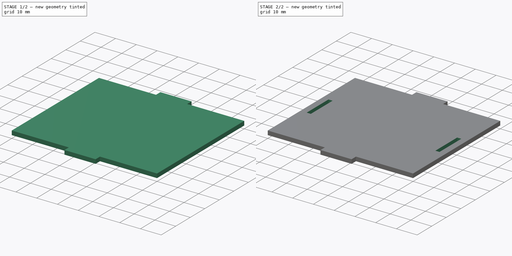
[diagram: build sequence overview — one tinted view per stage of 2, left to right]
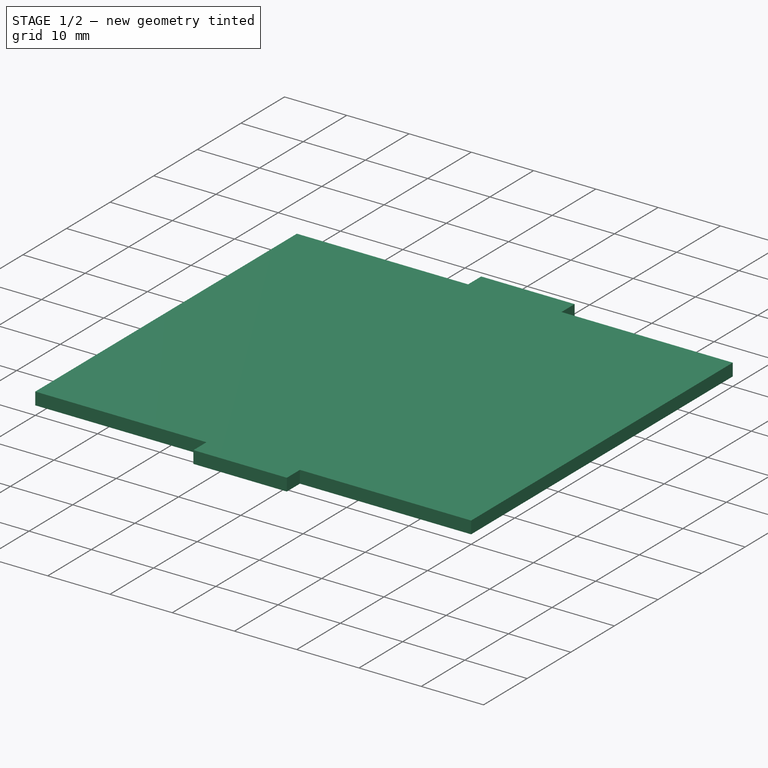
[diagram: stage 1 of 2 — iso view after this stage's code; geometry added in this stage tinted green]
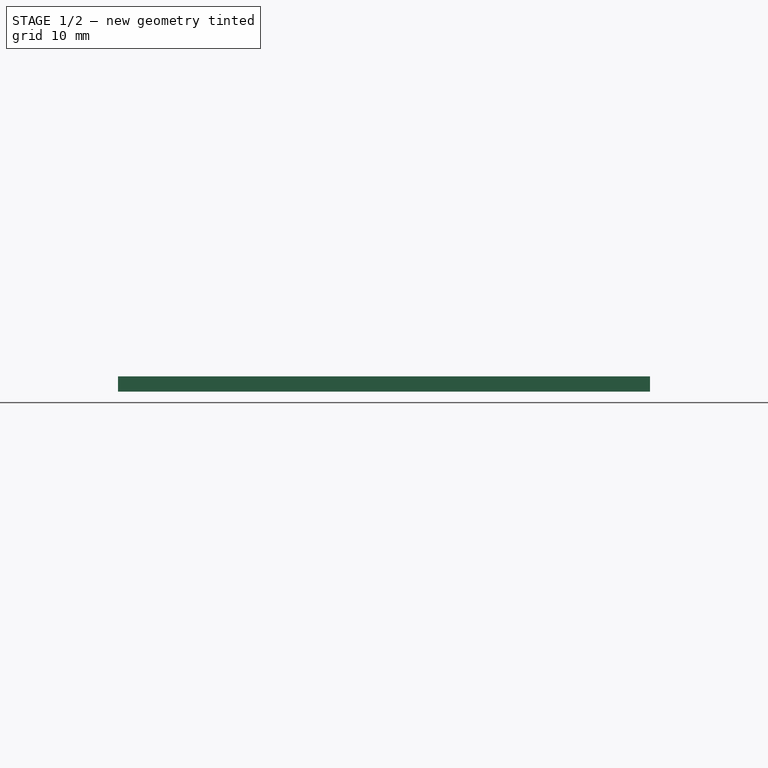
[diagram: stage 1 of 2 — front view after this stage's code; geometry added in this stage tinted green]
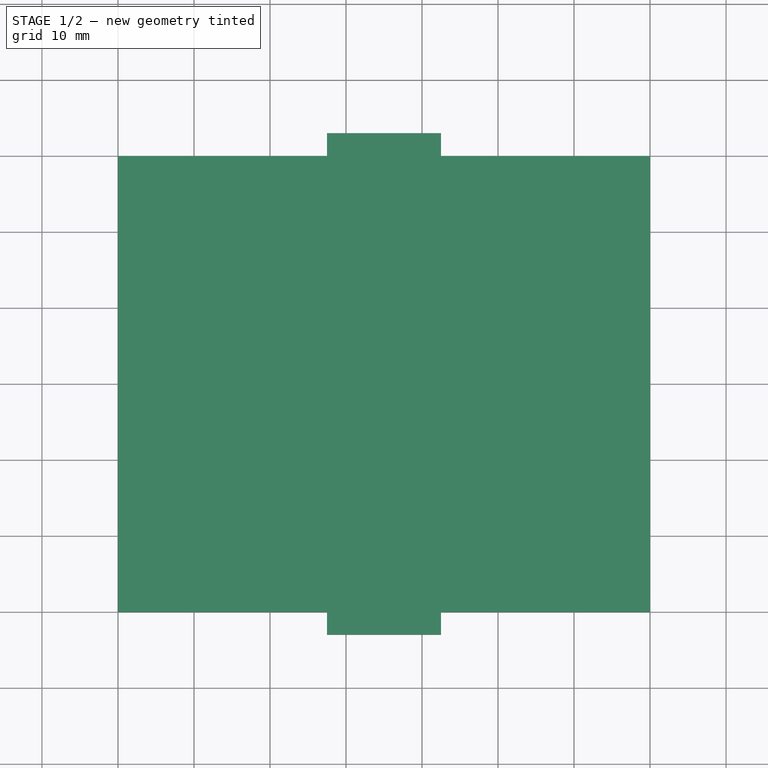
[diagram: stage 1 of 2 — top view after this stage's code; geometry added in this stage tinted green]
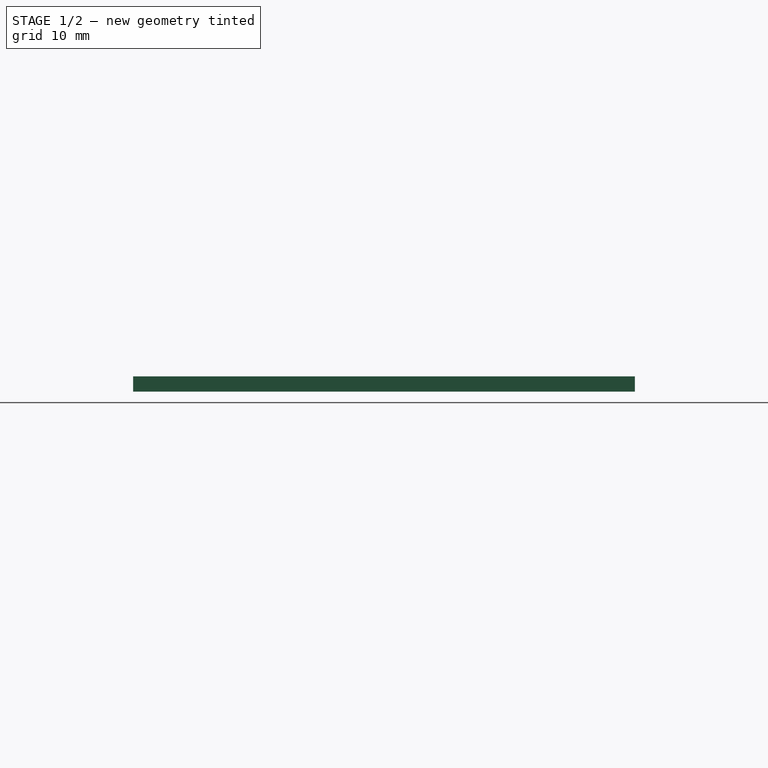
[diagram: stage 1 of 2 — right view after this stage's code; geometry added in this stage tinted green]
FCSTD DOCUMENT  (FreeCAD 1.0R39109 (Git))
Label: aimiya_bt_spk_side
License: All rights reserved
LicenseURL: https://en.wikipedia.org/wiki/All_rights_reserved
objects: Sketcher::SketchObject×2, PartDesign::Pad×1, PartDesign::Pocket×1, PartDesign::Body×1
note: 11 computed .brp shape members not serialized (recipe doc carries the construction recipe); baked Part::Feature solids carry a one-line shape summary decoded from their .brp

FEATURE [Sketcher::SketchObject] Sketch
  ArcFitTolerance = 1e-06
  AttachmentSupport = -> [XY_Plane]
  FullyConstrained = true
  MakeInternals = false
  MapMode = 5
  sketch-geometry (22):
    g0: LineSegment StartX=0 StartY=0 StartZ=0 EndX=70 EndY=0 EndZ=0
    g1: LineSegment StartX=70 StartY=0 StartZ=0 EndX=70 EndY=60 EndZ=0
    g2: LineSegment StartX=70 StartY=60 StartZ=0 EndX=0 EndY=60 EndZ=0
    g3: LineSegment StartX=0 StartY=60 StartZ=0 EndX=0 EndY=0 EndZ=0
    g4: LineSegment [constr] StartX=0 StartY=30 StartZ=0 EndX=70 EndY=30 EndZ=0
    g5: LineSegment [constr] StartX=35 StartY=60 StartZ=0 EndX=35 EndY=0 EndZ=0
    g6: GeomPoint [constr] X=35 Y=30 Z=0
    g7: LineSegment StartX=27.5 StartY=60 StartZ=0 EndX=42.5 EndY=60 EndZ=0
    g8: LineSegment StartX=42.5 StartY=60 StartZ=0 EndX=42.5 EndY=63 EndZ=0
    g9: LineSegment StartX=42.5 StartY=63 StartZ=0 EndX=27.5 EndY=63 EndZ=0
    g10: LineSegment StartX=27.5 StartY=63 StartZ=0 EndX=27.5 EndY=60 EndZ=0
    g11: LineSegment [constr] StartX=27.5 StartY=61.5 StartZ=0 EndX=42.5 EndY=61.5 EndZ=0
    g12: LineSegment [constr] StartX=35 StartY=63 StartZ=0 EndX=35 EndY=60 EndZ=0
    g13: LineSegment [constr] StartX=4 StartY=0 StartZ=0 EndX=66 EndY=0 EndZ=0
    g14: LineSegment [constr] StartX=66 StartY=0 StartZ=0 EndX=66 EndY=60 EndZ=0
    g15: LineSegment [constr] StartX=66 StartY=60 StartZ=0 EndX=4 EndY=60 EndZ=0
    g16: LineSegment [constr] StartX=4 StartY=60 StartZ=0 EndX=4 EndY=0 EndZ=0
    g17: GeomPoint [constr] X=35 Y=30 Z=0
    g18: LineSegment StartX=27.5 StartY=1.42e-14 StartZ=0 EndX=42.5 EndY=1.42e-14 EndZ=0
    g19: LineSegment StartX=42.5 StartY=1.42e-14 StartZ=0 EndX=42.5 EndY=-3 EndZ=0
    g20: LineSegment StartX=42.5 StartY=-3 StartZ=0 EndX=27.5 EndY=-3 EndZ=0
    g21: LineSegment StartX=27.5 StartY=-3 StartZ=0 EndX=27.5 EndY=1.42e-14 EndZ=0
  constraints (51):
    c: Coincident(g0,g1)
    c: Coincident(g1,g2)
    c: Coincident(g2,g3)
    c: Coincident(g3,g0)
    c: Horizontal(g0)
    c: Horizontal(g2)
    c: Vertical(g1)
    c: Vertical(g3)
    c: Distance(g1,g3) = 70
    c: Distance(g0,g2) = 60
    c: Coincident(g0,g-1)
    c: Symmetric(g3,g3,g4)
    c: Symmetric(g1,g1,g4)
    c: Symmetric(g2,g2,g5)
    c: Symmetric(g0,g0,g5)
    c: Symmetric(g4,g4,g6)
    c: Coincident(g7,g8)
    c: Coincident(g8,g9)
    c: Coincident(g9,g10)
    c: Coincident(g10,g7)
    c: Horizontal(g7)
    c: Horizontal(g9)
    c: Vertical(g8)
    c: Vertical(g10)
    c: Distance(g8,g10) = 15
    c: Distance(g7,g9) = 3
    c: Symmetric(g10,g10,g11)
    c: Symmetric(g8,g8,g11)
    c: Symmetric(g9,g9,g12)
    c: Symmetric(g7,g7,g12)
    c: Coincident(g12,g5)
    c: Coincident(g13,g14)
    c: Coincident(g14,g15)
    c: Coincident(g15,g16)
    c: Coincident(g16,g13)
    c: Horizontal(g13)
    c: Horizontal(g15)
    c: Vertical(g14)
    c: Vertical(g16)
    c: Symmetric(g15,g13,g17)
    c: Distance(g14,g16) = 62
    c: Coincident(g17,g6)
    c: PointOnObject(g14,g2)
    c: Symmetric(g7,g18,g4)
    c: Symmetric(g7,g18,g4)
    c: Symmetric(g8,g19,g4)
    c: Symmetric(g8,g19,g4)
    c: Symmetric(g9,g20,g4)
    c: Symmetric(g9,g20,g4)
    c: Symmetric(g10,g21,g4)
    c: Symmetric(g10,g21,g4)
FEATURE [PartDesign::Pad] Pad
  Direction = (0,0,1)
  Length = 2
  Length2 = 10
  Profile = -> Sketch
  ReferenceAxis = -> Sketch [N_Axis]
  Refine = true
  Suppressed = false
  Type = 0
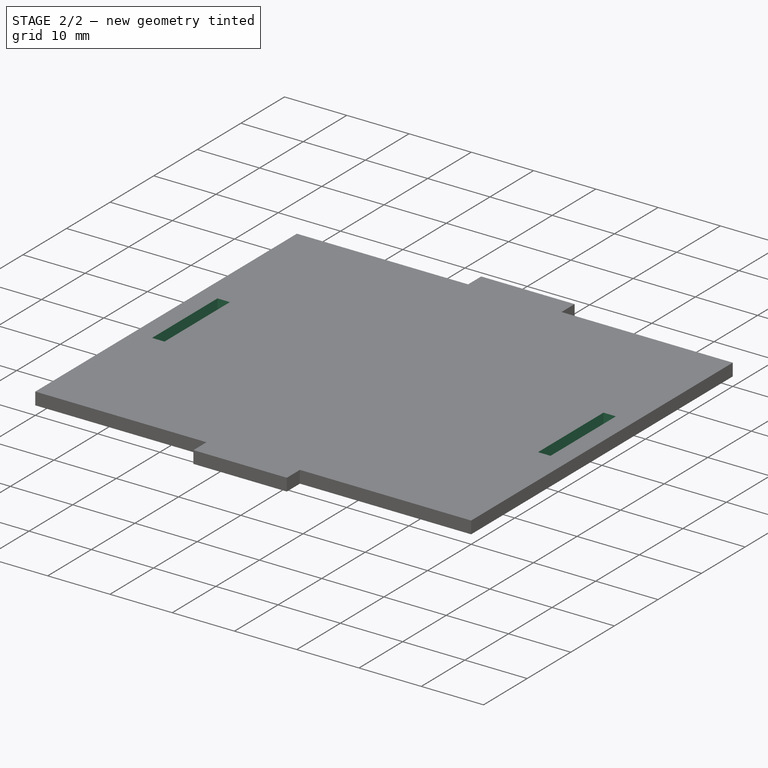
[diagram: stage 2 of 2 — iso view after this stage's code; geometry added in this stage tinted green]
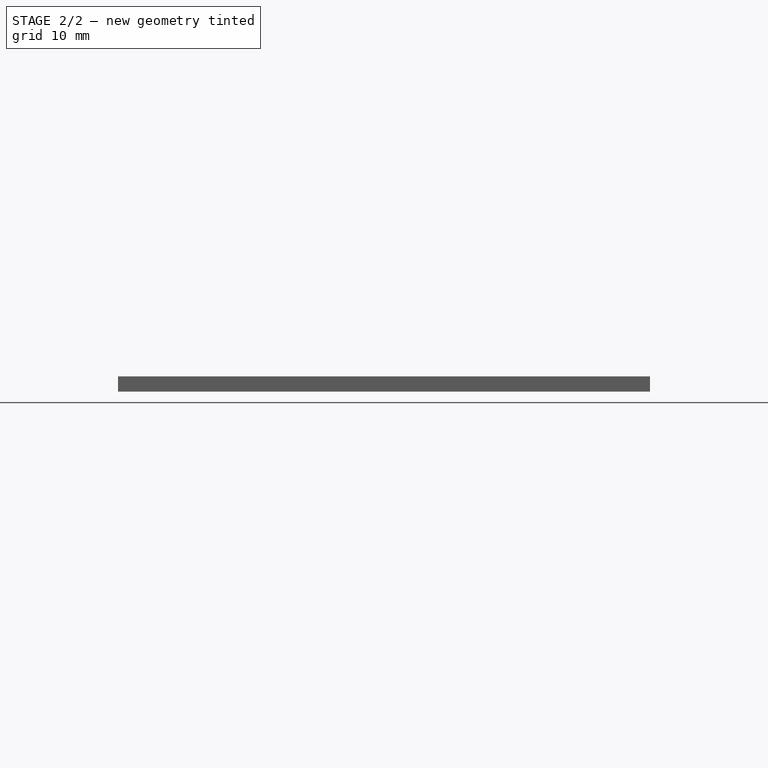
[diagram: stage 2 of 2 — front view after this stage's code; geometry added in this stage tinted green]
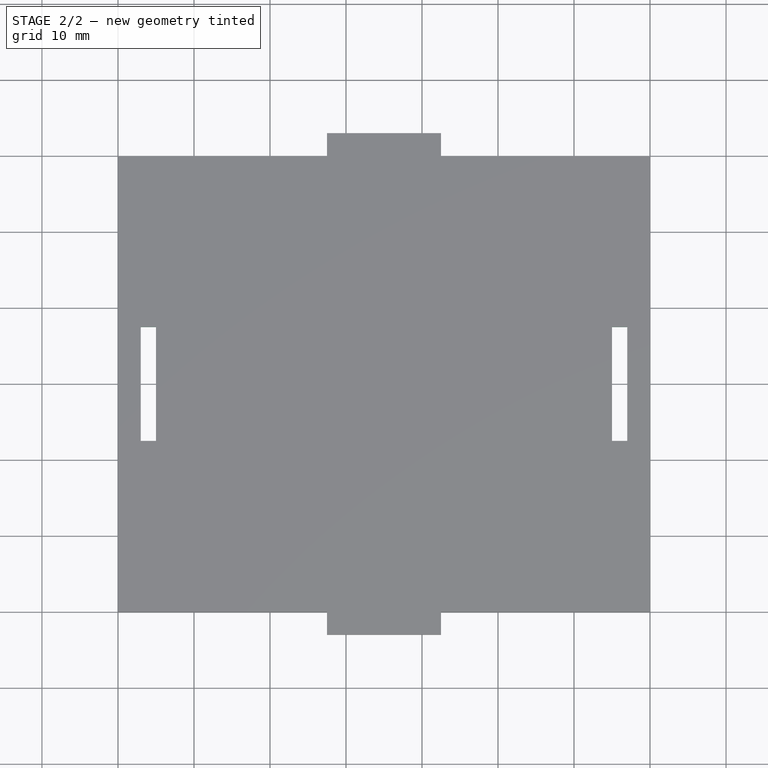
[diagram: stage 2 of 2 — top view after this stage's code; geometry added in this stage tinted green]
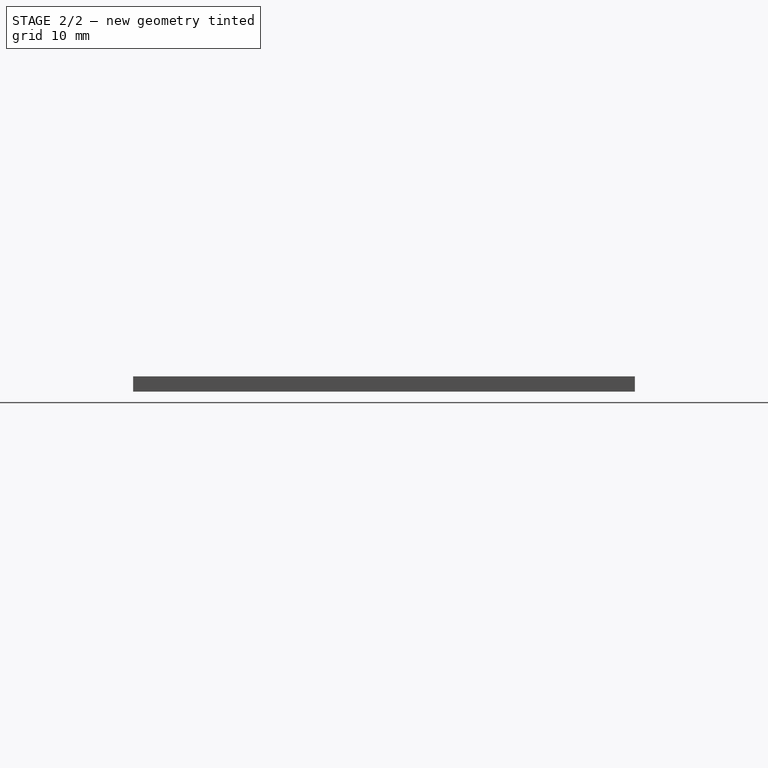
[diagram: stage 2 of 2 — right view after this stage's code; geometry added in this stage tinted green]
FEATURE [Sketcher::SketchObject] Sketch001
  ArcFitTolerance = 1e-06
  AttachmentSupport = -> [XY_Plane]
  FullyConstrained = true
  MakeInternals = false
  MapMode = 5
  sketch-geometry (22):
    g0: LineSegment [constr] StartX=0 StartY=0 StartZ=0 EndX=70 EndY=0 EndZ=0
    g1: LineSegment [constr] StartX=70 StartY=0 StartZ=0 EndX=70 EndY=60 EndZ=0
    g2: LineSegment [constr] StartX=70 StartY=60 StartZ=0 EndX=0 EndY=60 EndZ=0
    g3: LineSegment [constr] StartX=0 StartY=60 StartZ=0 EndX=0 EndY=0 EndZ=0
    g4: LineSegment [constr] StartX=0 StartY=30 StartZ=0 EndX=70 EndY=30 EndZ=0
    g5: LineSegment [constr] StartX=35 StartY=60 StartZ=0 EndX=35 EndY=0 EndZ=0
    g6: GeomPoint [constr] X=35 Y=30 Z=0
    g7: LineSegment [constr] StartX=5 StartY=0 StartZ=0 EndX=65 EndY=0 EndZ=0
    g8: LineSegment [constr] StartX=65 StartY=0 StartZ=0 EndX=65 EndY=60 EndZ=0
    g9: LineSegment [constr] StartX=65 StartY=60 StartZ=0 EndX=5 EndY=60 EndZ=0
    g10: LineSegment [constr] StartX=5 StartY=60 StartZ=0 EndX=5 EndY=0 EndZ=0
    g11: GeomPoint [constr] X=35 Y=30 Z=0
    g12: LineSegment StartX=65 StartY=37.5 StartZ=0 EndX=65 EndY=22.5 EndZ=0
    g13: LineSegment StartX=65 StartY=22.5 StartZ=0 EndX=67 EndY=22.5 EndZ=0
    g14: LineSegment StartX=67 StartY=22.5 StartZ=0 EndX=67 EndY=37.5 EndZ=0
    g15: LineSegment StartX=67 StartY=37.5 StartZ=0 EndX=65 EndY=37.5 EndZ=0
    g16: LineSegment [constr] StartX=66 StartY=37.5 StartZ=0 EndX=66 EndY=22.5 EndZ=0
    g17: LineSegment [constr] StartX=65 StartY=30 StartZ=0 EndX=67 EndY=30 EndZ=0
    g18: LineSegment StartX=5 StartY=37.5 StartZ=0 EndX=5 EndY=22.5 EndZ=0
    g19: LineSegment StartX=5 StartY=22.5 StartZ=0 EndX=3 EndY=22.5 EndZ=0
    g20: LineSegment StartX=3 StartY=22.5 StartZ=0 EndX=3 EndY=37.5 EndZ=0
    g21: LineSegment StartX=3 StartY=37.5 StartZ=0 EndX=5 EndY=37.5 EndZ=0
  constraints (50):
    c: Coincident(g0,g1)
    c: Coincident(g1,g2)
    c: Coincident(g2,g3)
    c: Coincident(g3,g0)
    c: Horizontal(g0)
    c: Horizontal(g2)
    c: Vertical(g1)
    c: Vertical(g3)
    c: Distance(g1,g3) = 70
    c: Distance(g0,g2) = 60
    c: Coincident(g0,g-1)
    c: Symmetric(g3,g3,g4)
    c: Symmetric(g1,g1,g4)
    c: Symmetric(g2,g2,g5)
    c: Symmetric(g0,g0,g5)
    c: Symmetric(g4,g4,g6)
    c: Coincident(g7,g8)
    c: Coincident(g8,g9)
    c: Coincident(g9,g10)
    c: Coincident(g10,g7)
    c: Horizontal(g7)
    c: Horizontal(g9)
    c: Vertical(g8)
    c: Vertical(g10)
    c: Symmetric(g9,g7,g11)
    c: Distance(g8,g10) = 60
    c: Coincident(g11,g6)
    c: PointOnObject(g8,g2)
    c: Coincident(g12,g13)
    c: Coincident(g13,g14)
    c: Coincident(g14,g15)
    c: Coincident(g15,g12)
    c: Vertical(g14)
    c: Horizontal(g13)
    c: Distance(g12,g14) = 2
    c: Distance(g13,g15) = 15
    c: Symmetric(g15,g15,g16)
    c: Symmetric(g13,g13,g16)
    c: Symmetric(g12,g12,g17)
    c: Symmetric(g14,g14,g17)
    c: Tangent(g12,g8)
    c: Tangent(g17,g4)
    c: Symmetric(g12,g18,g5)
    c: Symmetric(g12,g18,g5)
    c: Symmetric(g13,g19,g5)
    c: Symmetric(g13,g19,g5)
    c: Symmetric(g14,g20,g5)
    c: Symmetric(g14,g20,g5)
    c: Symmetric(g15,g21,g5)
    c: Symmetric(g15,g21,g5)
FEATURE [PartDesign::Pocket] Pocket
  BaseFeature = -> Pad
  Direction = (0,0,-1)
  Length = 2
  Length2 = 5
  Profile = -> Sketch001
  ReferenceAxis = -> Sketch001 [N_Axis]
  Refine = true
  Reversed = true
  Suppressed = false
  Type = 0
FEATURE [PartDesign::Body] Body  label="body"
  AllowCompound = false
  Group = -> [Sketch,Pad,Sketch001,Pocket]
  Origin = -> Origin
  Tip = -> Pocket
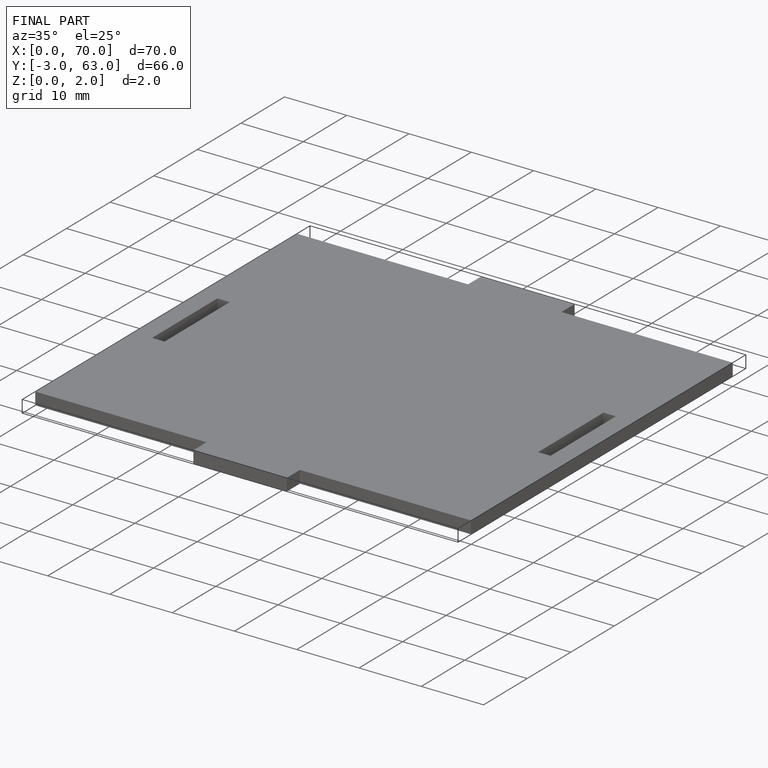
[diagram: finished part — iso view with bounding-box wireframe]
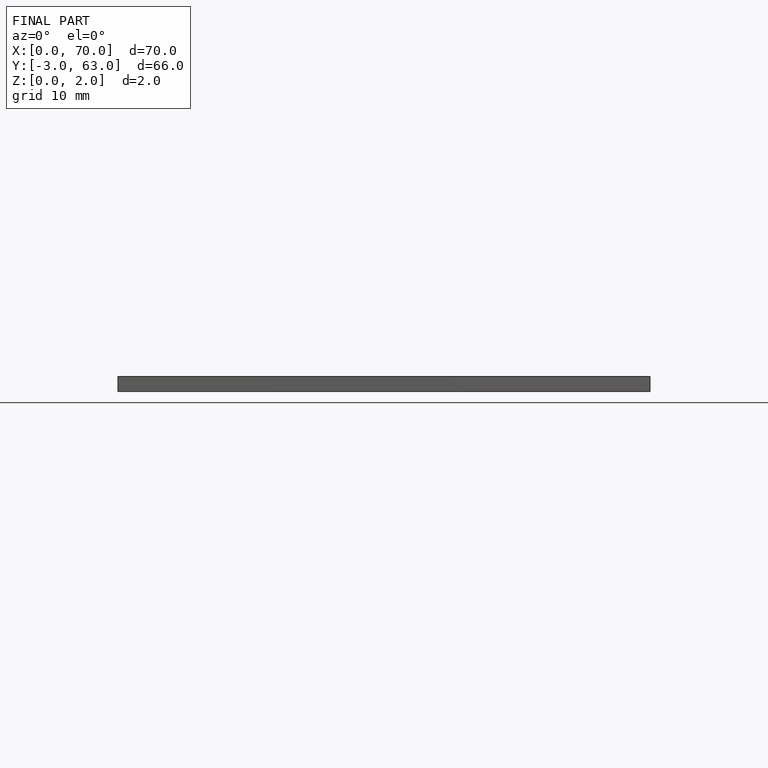
[diagram: finished part — front view with bounding-box wireframe]
